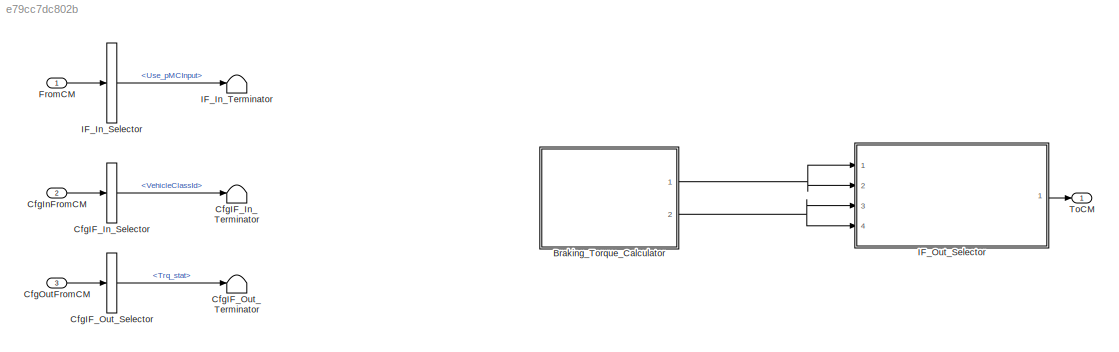
MODEL slx_e79cc7dc802b
KIND model
CONFIG AbsTol = auto
CONFIG EnableMultiTasking = off
CONFIG FixedStep = 0.001
CONFIG InitFcn = vehicle = 'Car'; if ~length(which('cmself')), cmenv; end\nBoschAEB_Hyd_bus
CONFIG MaxStep = auto
CONFIG MinStep = auto
CONFIG PreLoadFcn = vehicle = 'Car'; if ~length(which('cmself')), cmenv; end\nBoschAEB_Hyd_bus
CONFIG RelTol = 1e-3
CONFIG SampleTimeConstraint = Unconstrained
CONFIG SolverName = ode1
CONFIG StartTime = 0.0
CONFIG StopTime = inf
WORKSPACE source: mxarray member
WORKSPACE CpFront_CpF = 20.55
WORKSPACE CpRear_CpR = 13.93
WORKSPACE Driver_J_Max = 0
WORKSPACE Driver_a_Max = 0
WORKSPACE Normal: object (value not decoded)
WORKSPACE PLockFront_PLF = 83
WORKSPACE PLockRear_PLR = 116
WORKSPACE Prefill: object (value not decoded)
WORKSPACE Prefill_activation = 1
WORKSPACE WheelRadius_WR = 0.35
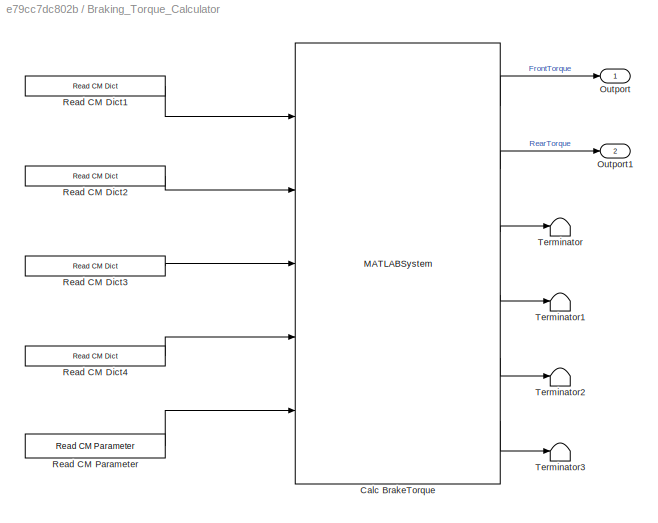
BLOCK [SubSystem] Braking_Torque_Calculator
  Ports = [0, 2]
  RequestExecContextInheritance = off
BLOCK [MATLABSystem] Braking_Torque_Calculator/Calc BrakeTorque
  CpFront = CpFront_CpF
  CpRear = CpRear_CpR
  MaskDisplay = disp('HydrPressureToTrq');\nport_label('input',1,'j_Max');\nport_label('input',2,'a_Start');\nport_label('input',3,'a_Max');\nport_label('input',4,'EBA_active');\nport_label('input',5,'Ego_BodyMass');\nport_label('output',1,'FrontTorque');\nport_label('output',2,'RearTorque');\nport_label('output',3,'pFront');\nport_label('output',4,'pRear');\nport_label('output',5,'aEgoTest');\nport_label('output',6,'aEGO_t...<+5ch>
  MaskType = HydrPressureToTrq
  PLockFront = PLockFront_PLF
  PLockRear = PLockRear_PLR
  PTime = Normal.Time
  PTimePrefill = Prefill.Time
  PValuesNormal_Front = Normal.PFront
  PValuesNormal_Rear = Normal.PRear
  PValuesPrefill_Front = Prefill.PFront
  PValuesPrefill_Rear = Prefill.PRear
  Ports = [5, 6]
  Prefill = Prefill_activation
  RWheel = WheelRadius_WR
  SimulateUsing = Code generation
  System = HydrPressureToTrq
  a_Max_Driver = Driver_a_Max
  j_Max_Driver = Driver_J_Max
BLOCK [Outport] Braking_Torque_Calculator/Outport
BLOCK [Outport] Braking_Torque_Calculator/Outport1
  Port = 2
BLOCK [Reference] Braking_Torque_Calculator/Read CM Dict1  REF=CarMaker4SL/Read CM Dict
  Ports = [0, 1]
  SourceBlock = CarMaker4SL/Read CM Dict
  SourceProductName = CarMaker4SL
  SourceType = Read CarMaker Dictionary Variable(s)
BLOCK [Reference] Braking_Torque_Calculator/Read CM Dict2  REF=CarMaker4SL/Read CM Dict
  Ports = [0, 1]
  SourceBlock = CarMaker4SL/Read CM Dict
  SourceProductName = CarMaker4SL
  SourceType = Read CarMaker Dictionary Variable(s)
BLOCK [Reference] Braking_Torque_Calculator/Read CM Dict3  REF=CarMaker4SL/Read CM Dict
  Ports = [0, 1]
  SourceBlock = CarMaker4SL/Read CM Dict
  SourceProductName = CarMaker4SL
  SourceType = Read CarMaker Dictionary Variable(s)
BLOCK [Reference] Braking_Torque_Calculator/Read CM Dict4  REF=CarMaker4SL/Read CM Dict
  Ports = [0, 1]
  SourceBlock = CarMaker4SL/Read CM Dict
  SourceProductName = CarMaker4SL
  SourceType = Read CarMaker Dictionary Variable(s)
BLOCK [Reference] Braking_Torque_Calculator/Read CM Parameter  REF=CarMaker4SL/Read CM Parameter
  Ports = [0, 1]
  SourceBlock = CarMaker4SL/Read CM Parameter
  SourceProductName = CarMaker4SL
  SourceType = Read CarMaker Infofile Parameter
BLOCK [Terminator] Braking_Torque_Calculator/Terminator
BLOCK [Terminator] Braking_Torque_Calculator/Terminator1
BLOCK [Terminator] Braking_Torque_Calculator/Terminator2
BLOCK [Terminator] Braking_Torque_Calculator/Terminator3
BLOCK [BusSelector] CfgIF_In_Selector
  OutputSignals = VehicleClassId
  Ports = [1, 1]
BLOCK [Terminator] CfgIF_In_Terminator
BLOCK [BusSelector] CfgIF_Out_Selector
  OutputSignals = Trq_stat
  Ports = [1, 1]
BLOCK [Terminator] CfgIF_Out_Terminator
BLOCK [Inport] CfgInFromCM
  OutDataTypeStr = Bus: cmHydBrakeSystemCfgIn
  Port = 2
BLOCK [Inport] CfgOutFromCM
  OutDataTypeStr = Bus: cmHydBrakeSystemCfgOut
  Port = 3
BLOCK [Inport] FromCM
  OutDataTypeStr = Bus: cmHydBrakeSystemIn
BLOCK [BusSelector] IF_In_Selector
  OutputSignals = Use_pMCInput
  Ports = [1, 1]
BLOCK [Terminator] IF_In_Terminator
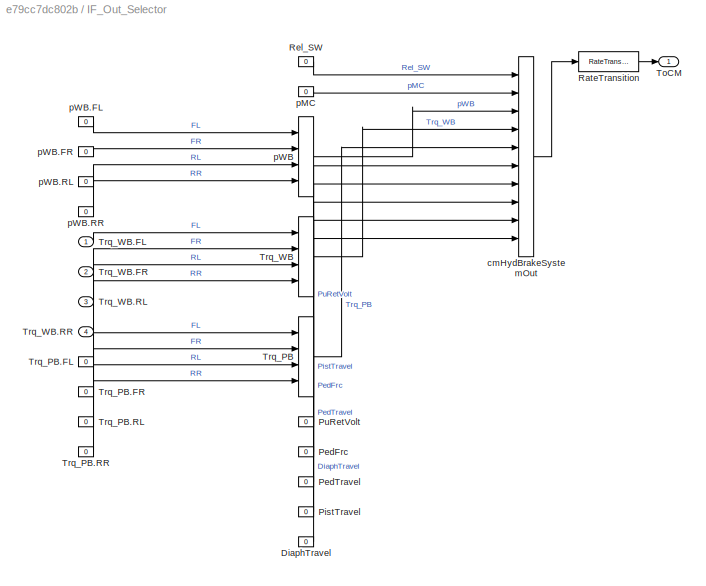
BLOCK [SubSystem] IF_Out_Selector
  OpenFcn = cmSignalSelect('SignalSelection_CB',gcb)
  Ports = [4, 1]
  RequestExecContextInheritance = off
  UserDataPersistent = on
BLOCK [Constant] IF_Out_Selector/DiaphTravel
  Value = 0
BLOCK [Constant] IF_Out_Selector/PedFrc
  Value = 0
BLOCK [Constant] IF_Out_Selector/PedTravel
  Value = 0
BLOCK [Constant] IF_Out_Selector/PistTravel
  Value = 0
BLOCK [Constant] IF_Out_Selector/PuRetVolt
  Value = 0
BLOCK [RateTransition] IF_Out_Selector/RateTransition
  OutPortSampleTime = str2num(get_param(bdroot,'FixedStep'))
BLOCK [Constant] IF_Out_Selector/Rel_SW
  Value = 0
BLOCK [Outport] IF_Out_Selector/ToCM
BLOCK [BusCreator] IF_Out_Selector/Trq_PB
  InheritFromInputs = on
  Inputs = 4
  Ports = [4, 1]
BLOCK [Constant] IF_Out_Selector/Trq_PB.FL
  Value = 0
BLOCK [Constant] IF_Out_Selector/Trq_PB.FR
  Value = 0
BLOCK [Constant] IF_Out_Selector/Trq_PB.RL
  Value = 0
BLOCK [Constant] IF_Out_Selector/Trq_PB.RR
  Value = 0
BLOCK [BusCreator] IF_Out_Selector/Trq_WB
  InheritFromInputs = on
  Inputs = 4
  Ports = [4, 1]
BLOCK [Inport] IF_Out_Selector/Trq_WB.FL
BLOCK [Inport] IF_Out_Selector/Trq_WB.FR
  Port = 2
BLOCK [Inport] IF_Out_Selector/Trq_WB.RL
  Port = 3
BLOCK [Inport] IF_Out_Selector/Trq_WB.RR
  Port = 4
BLOCK [BusCreator] IF_Out_Selector/cmHydBrakeSystemOut
  InheritFromInputs = on
  Inputs = 10
  Ports = [10, 1]
BLOCK [Constant] IF_Out_Selector/pMC
  Value = 0
BLOCK [BusCreator] IF_Out_Selector/pWB
  InheritFromInputs = on
  Inputs = 4
  Ports = [4, 1]
BLOCK [Constant] IF_Out_Selector/pWB.FL
  Value = 0
BLOCK [Constant] IF_Out_Selector/pWB.FR
  Value = 0
BLOCK [Constant] IF_Out_Selector/pWB.RL
  Value = 0
BLOCK [Constant] IF_Out_Selector/pWB.RR
  Value = 0
BLOCK [Outport] ToCM
  OutDataTypeStr = Bus: cmHydBrakeSystemOut
LINE Braking_Torque_Calculator/Calc BrakeTorque:1 -> Braking_Torque_Calculator/Outport:1
LINE Braking_Torque_Calculator/Calc BrakeTorque:2 -> Braking_Torque_Calculator/Outport1:1
LINE Braking_Torque_Calculator/Calc BrakeTorque:3 -> Braking_Torque_Calculator/Terminator:1
LINE Braking_Torque_Calculator/Calc BrakeTorque:4 -> Braking_Torque_Calculator/Terminator1:1
LINE Braking_Torque_Calculator/Calc BrakeTorque:5 -> Braking_Torque_Calculator/Terminator2:1
LINE Braking_Torque_Calculator/Calc BrakeTorque:6 -> Braking_Torque_Calculator/Terminator3:1
LINE Braking_Torque_Calculator/Read CM Dict1:1 -> Braking_Torque_Calculator/Calc BrakeTorque:1
LINE Braking_Torque_Calculator/Read CM Dict2:1 -> Braking_Torque_Calculator/Calc BrakeTorque:2
LINE Braking_Torque_Calculator/Read CM Dict3:1 -> Braking_Torque_Calculator/Calc BrakeTorque:3
LINE Braking_Torque_Calculator/Read CM Dict4:1 -> Braking_Torque_Calculator/Calc BrakeTorque:4
LINE Braking_Torque_Calculator/Read CM Parameter:1 -> Braking_Torque_Calculator/Calc BrakeTorque:5
NET Braking_Torque_Calculator:1 -> IF_Out_Selector:1, IF_Out_Selector:2
NET Braking_Torque_Calculator:2 -> IF_Out_Selector:3, IF_Out_Selector:4
LINE CfgIF_In_Selector:1 -> CfgIF_In_Terminator:1
LINE CfgIF_Out_Selector:1 -> CfgIF_Out_Terminator:1
LINE CfgInFromCM:1 -> CfgIF_In_Selector:1
LINE CfgOutFromCM:1 -> CfgIF_Out_Selector:1
LINE FromCM:1 -> IF_In_Selector:1
LINE IF_In_Selector:1 -> IF_In_Terminator:1
LINE IF_Out_Selector/DiaphTravel:1 -> IF_Out_Selector/cmHydBrakeSystemOut:10
LINE IF_Out_Selector/PedFrc:1 -> IF_Out_Selector/cmHydBrakeSystemOut:7
LINE IF_Out_Selector/PedTravel:1 -> IF_Out_Selector/cmHydBrakeSystemOut:8
LINE IF_Out_Selector/PistTravel:1 -> IF_Out_Selector/cmHydBrakeSystemOut:9
LINE IF_Out_Selector/PuRetVolt:1 -> IF_Out_Selector/cmHydBrakeSystemOut:6
LINE IF_Out_Selector/RateTransition:1 -> IF_Out_Selector/ToCM:1
LINE IF_Out_Selector/Rel_SW:1 -> IF_Out_Selector/cmHydBrakeSystemOut:1
LINE IF_Out_Selector/Trq_PB.FL:1 -> IF_Out_Selector/Trq_PB:1
LINE IF_Out_Selector/Trq_PB.FR:1 -> IF_Out_Selector/Trq_PB:2
LINE IF_Out_Selector/Trq_PB.RL:1 -> IF_Out_Selector/Trq_PB:3
LINE IF_Out_Selector/Trq_PB.RR:1 -> IF_Out_Selector/Trq_PB:4
LINE IF_Out_Selector/Trq_PB:1 -> IF_Out_Selector/cmHydBrakeSystemOut:5
LINE IF_Out_Selector/Trq_WB.FL:1 -> IF_Out_Selector/Trq_WB:1
LINE IF_Out_Selector/Trq_WB.FR:1 -> IF_Out_Selector/Trq_WB:2
LINE IF_Out_Selector/Trq_WB.RL:1 -> IF_Out_Selector/Trq_WB:3
LINE IF_Out_Selector/Trq_WB.RR:1 -> IF_Out_Selector/Trq_WB:4
LINE IF_Out_Selector/Trq_WB:1 -> IF_Out_Selector/cmHydBrakeSystemOut:4
LINE IF_Out_Selector/cmHydBrakeSystemOut:1 -> IF_Out_Selector/RateTransition:1
LINE IF_Out_Selector/pMC:1 -> IF_Out_Selector/cmHydBrakeSystemOut:2
LINE IF_Out_Selector/pWB.FL:1 -> IF_Out_Selector/pWB:1
LINE IF_Out_Selector/pWB.FR:1 -> IF_Out_Selector/pWB:2
LINE IF_Out_Selector/pWB.RL:1 -> IF_Out_Selector/pWB:3
LINE IF_Out_Selector/pWB.RR:1 -> IF_Out_Selector/pWB:4
LINE IF_Out_Selector/pWB:1 -> IF_Out_Selector/cmHydBrakeSystemOut:3
LINE IF_Out_Selector:1 -> ToCM:1
note: NET lines group one-source signal fan-out (src -> all destinations, sorted); 1:1 wires keep LINE
